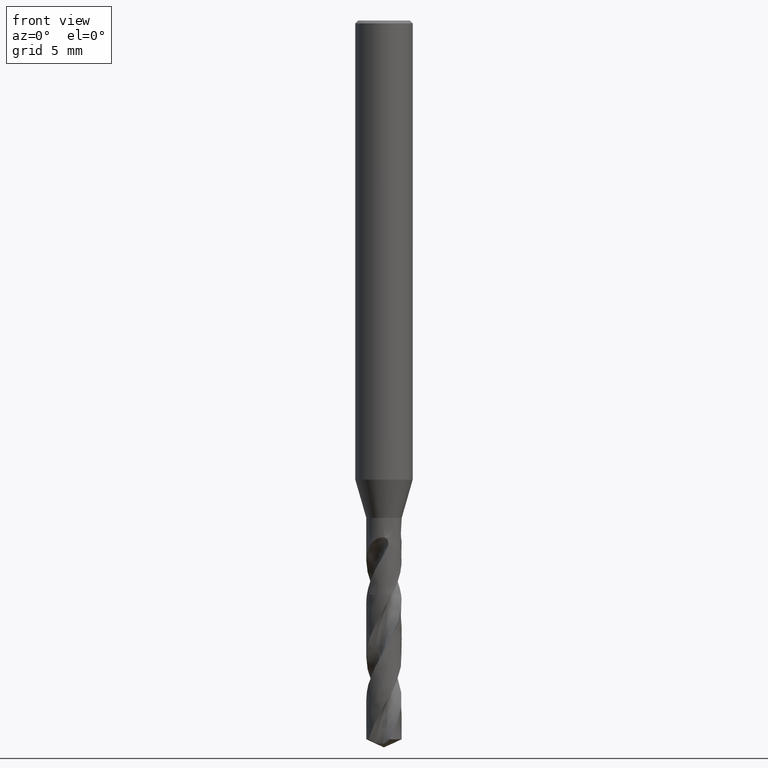
[diagram: clean part render]
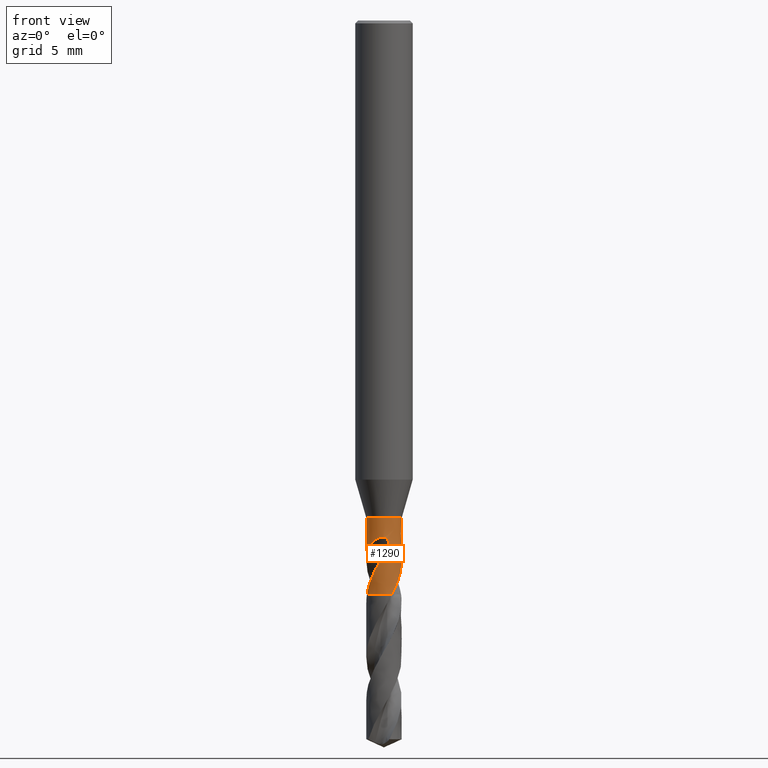
[diagram: same view with one face highlighted and labeled with its STEP entity id]
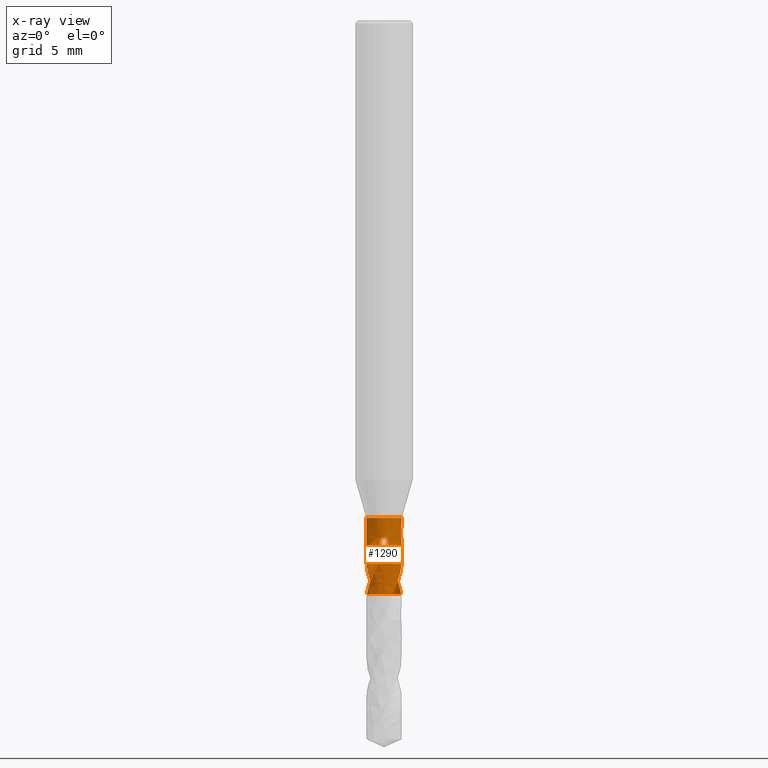
[diagram: x-ray of the same camera — body ghosted, the highlighted face saturated]
A machine part, front view. The second image highlights one B-rep face of the part: STEP entity #1290.
The next image is the same camera in x-ray: the body ghosted, the highlighted face saturated — about 0% of this face is hidden behind the body in this view.
In plain terms, the highlighted face is a freeform B-spline surface patch.
Its self-contained STEP definition (entity closure, byte-faithful):
#75 = VERTEX_POINT('', #76);
#76 = CARTESIAN_POINT('', (-0.925, 1.64868075335212E-15, -26.));
#90 = EDGE_CURVE('', #75, #75, #91, .T.);
#91 = CIRCLE('', #92, 0.925);
#92 = AXIS2_PLACEMENT_3D('', #93, #94, #95);
#93 = CARTESIAN_POINT('', (9.74843858730207E-32, 1.59204083889156E-15, -26.));
#94 = DIRECTION('', (3.74939945665464E-33, 6.12323399573677E-17, -1.));
#95 = DIRECTION('', (-1., 6.12323399573677E-17, 0.));
#207 = VERTEX_POINT('', #208);
#208 = CARTESIAN_POINT('', (0.414268588419358, -0.827046876935663, -30.));
#217 = VERTEX_POINT('', #218);
#218 = CARTESIAN_POINT('', (0.788812881587441, 0.48311410437051, -27.5484378001471));
#239 = EDGE_CURVE('', #217, #207, #240, .T.);
#240 = B_SPLINE_CURVE_WITH_KNOTS('', 3, (#241, #242, #243, #244, #245, #246, #247, #248, #249, #250, #251, #252, #253, #254, #255, #256, #257, #258, #259, #260, #261, #262, #263, #264, #265, #266, #267, #268, #269, #270, #271, #272, #273, #274, #275, #276, #277, #278, #279, #280, #281, #282, #283, #284, #285, #286, #287, #288, #289, #290, #291, #292, #293, #294, #295, #296, #297, #298, #299, #300, #301, #302, #303, #304, #305, #306, #307, #308, #309, #310, #311, #312, #313, #314, #315, #316, #317, #318, #319), .UNSPECIFIED., .F., .U., (4, 3, 3, 3, 3, 3, 3, 3, 3, 3, 3, 3, 3, 3, 3, 3, 3, 3, 3, 3, 3, 3, 3, 3, 3, 3, 4), (0., 0.130454988709354, 0.260964856189102, 0.348195578885795, 0.478838544386233, 0.566131726483107, 0.653452161893825, 0.740805188775253, 0.828189763664988, 0.867090090024549, 0.998756733275556, 1.13046240626533, 1.18891029750615, 1.22785801022427, 1.31552434826377, 1.40315336593242, 1.53465519290723, 1.62226750022974, 1.81940511611608, 1.9508098107285, 2.0383995078658, 2.16979591348524, 2.30116775884906, 2.43252164493, 2.62948503615783, 2.8263774012078, 2.89562118948527), .UNSPECIFIED.);
#241 = CARTESIAN_POINT('', (0.788812881587441, 0.48311410437051, -27.5484378001471));
#242 = CARTESIAN_POINT('', (0.803467967708319, 0.459185759889686, -27.5816583913351));
#243 = CARTESIAN_POINT('', (0.816888842729187, 0.43482489972588, -27.6151365811313));
#244 = CARTESIAN_POINT('', (0.829074376883995, 0.410195901484205, -27.6488392531419));
#245 = CARTESIAN_POINT('', (0.841265037152704, 0.38555654251081, -27.6825561029254));
#246 = CARTESIAN_POINT('', (0.852228524489638, 0.360630828255313, -27.7165299207103));
#247 = CARTESIAN_POINT('', (0.861983590559101, 0.335573076403409, -27.7507276388482));
#248 = CARTESIAN_POINT('', (0.868503721792283, 0.31882487302687, -27.7735848505315));
#249 = CARTESIAN_POINT('', (0.874487620732798, 0.30200940641826, -27.7965520409304));
#250 = CARTESIAN_POINT('', (0.879944338095419, 0.285171811113609, -27.8196212015904));
#251 = CARTESIAN_POINT('', (0.888116708059947, 0.259954624846056, -27.854171225562));
#252 = CARTESIAN_POINT('', (0.895110094369803, 0.234675109555443, -27.888973947021));
#253 = CARTESIAN_POINT('', (0.900969551703756, 0.209472830941715, -27.9240012247194));
#254 = CARTESIAN_POINT('', (0.904884731323894, 0.192633140508656, -27.9474057954803));
#255 = CARTESIAN_POINT('', (0.908295695513128, 0.17582054245484, -27.9709195980418));
#256 = CARTESIAN_POINT('', (0.911218913954033, 0.15907573935844, -27.9945362045096));
#257 = CARTESIAN_POINT('', (0.91414304503654, 0.142325708461162, -28.0181601841853));
#258 = CARTESIAN_POINT('', (0.916579828191253, 0.125639889065587, -28.0418950675783));
#259 = CARTESIAN_POINT('', (0.918548956539916, 0.109054181210236, -28.0657329223864));
#260 = CARTESIAN_POINT('', (0.92051881984585, 0.0924622829069197, -28.0895796744331));
#261 = CARTESIAN_POINT('', (0.922021350848171, 0.0759650655814016, -28.1135356224704));
#262 = CARTESIAN_POINT('', (0.923078173664019, 0.0595960175272386, -28.1375933951284));
#263 = CARTESIAN_POINT('', (0.924135378157025, 0.0432210577046755, -28.1616598563784));
#264 = CARTESIAN_POINT('', (0.924746778330119, 0.0269700424117557, -28.1858346741276));
#265 = CARTESIAN_POINT('', (0.924936034261434, 0.0108780754157864, -28.2101135605935));
#266 = CARTESIAN_POINT('', (0.92502028388447, 0.00371453689997417, -28.2209216077615));
#267 = CARTESIAN_POINT('', (0.925020928577659, -0.00341812275780943, -28.2317511521088));
#268 = CARTESIAN_POINT('', (0.924940209305844, -0.0105170912928615, -28.2426017463686));
#269 = CARTESIAN_POINT('', (0.924666997316119, -0.0345450994107187, -28.2793279504179));
#270 = CARTESIAN_POINT('', (0.923460663113267, -0.0581942316217355, -28.3163084604708));
#271 = CARTESIAN_POINT('', (0.921414353123823, -0.0813670071798532, -28.3535249752342));
#272 = CARTESIAN_POINT('', (0.919367436549884, -0.104546651807874, -28.3907525220314));
#273 = CARTESIAN_POINT('', (0.916479025078703, -0.127266568327639, -28.4282318979797));
#274 = CARTESIAN_POINT('', (0.912845998020689, -0.149456294272309, -28.4659385712614));
#275 = CARTESIAN_POINT('', (0.911233745749838, -0.159303574645559, -28.4826719092338));
#276 = CARTESIAN_POINT('', (0.90947480049693, -0.169046902596751, -28.4994533206896));
#277 = CARTESIAN_POINT('', (0.907579578770284, -0.178673747929527, -28.516284983453));
#278 = CARTESIAN_POINT('', (0.906316666631292, -0.185088754501069, -28.5275010385057));
#279 = CARTESIAN_POINT('', (0.904993350924171, -0.191451659033443, -28.5387403941516));
#280 = CARTESIAN_POINT('', (0.903612710884482, -0.197760129267751, -28.5500029064697));
#281 = CARTESIAN_POINT('', (0.900505066096554, -0.211959691847344, -28.575353386463));
#282 = CARTESIAN_POINT('', (0.897109155385688, -0.225879019885307, -28.6008280397954));
#283 = CARTESIAN_POINT('', (0.893435607349673, -0.239578412049275, -28.6263772779178));
#284 = CARTESIAN_POINT('', (0.88976362317703, -0.253271972255305, -28.6519156394933));
#285 = CARTESIAN_POINT('', (0.885814968610249, -0.266749440179987, -28.6775318796818));
#286 = CARTESIAN_POINT('', (0.881548372916112, -0.280173992741943, -28.7031205983003));
#287 = CARTESIAN_POINT('', (0.875145640765634, -0.300319753075489, -28.7415207006613));
#288 = CARTESIAN_POINT('', (0.868020474222891, -0.320342174157691, -28.779872152362));
#289 = CARTESIAN_POINT('', (0.860188181893511, -0.340148925811526, -28.8181835382092));
#290 = CARTESIAN_POINT('', (0.854969963877932, -0.353345055879659, -28.8437082703595));
#291 = CARTESIAN_POINT('', (0.849436930754068, -0.366449206879679, -28.8692183462497));
#292 = CARTESIAN_POINT('', (0.843590561634655, -0.379446918976721, -28.894708717917));
#293 = CARTESIAN_POINT('', (0.830435568860069, -0.408693243529679, -28.9520649416271));
#294 = CARTESIAN_POINT('', (0.815684058864199, -0.437418047233186, -29.0093464675463));
#295 = CARTESIAN_POINT('', (0.799379613785737, -0.465421564889092, -29.0665138166419));
#296 = CARTESIAN_POINT('', (0.788511669498556, -0.484087681292618, -29.1046194720032));
#297 = CARTESIAN_POINT('', (0.776951319492556, -0.502437905884926, -29.1426901353374));
#298 = CARTESIAN_POINT('', (0.764725950366369, -0.52040294084128, -29.180721371892));
#299 = CARTESIAN_POINT('', (0.756576953998219, -0.532377794369377, -29.2060716419216));
#300 = CARTESIAN_POINT('', (0.748131340138345, -0.544183537905284, -29.2314087728082));
#301 = CARTESIAN_POINT('', (0.739398605966511, -0.555800954924314, -29.2567309848974));
#302 = CARTESIAN_POINT('', (0.726298322269783, -0.573228653486734, -29.2947177317364));
#303 = CARTESIAN_POINT('', (0.712544495719824, -0.59023966161256, -29.3326781290825));
#304 = CARTESIAN_POINT('', (0.698211039737382, -0.606734162536479, -29.3706362444782));
#305 = CARTESIAN_POINT('', (0.683880262925205, -0.623225580353541, -29.4085872648471));
#306 = CARTESIAN_POINT('', (0.668976408045463, -0.639196025671836, -29.4465561136191));
#307 = CARTESIAN_POINT('', (0.653536601145273, -0.654610503248673, -29.4845248404428));
#308 = CARTESIAN_POINT('', (0.638098904955022, -0.670022873578236, -29.5224883767244));
#309 = CARTESIAN_POINT('', (0.622117594944659, -0.684887333065709, -29.5604611340609));
#310 = CARTESIAN_POINT('', (0.605627334106899, -0.699171318192163, -29.5984233886863));
#311 = CARTESIAN_POINT('', (0.58090040905167, -0.720589962395964, -29.6553472805694));
#312 = CARTESIAN_POINT('', (0.555020590587602, -0.740707209235568, -29.7122864412809));
#313 = CARTESIAN_POINT('', (0.528166069387101, -0.759385016410106, -29.7692116801436));
#314 = CARTESIAN_POINT('', (0.501321232087688, -0.778056088255577, -29.8261163914244));
#315 = CARTESIAN_POINT('', (0.47348082376478, -0.795304816381797, -29.8830444736634));
#316 = CARTESIAN_POINT('', (0.444815960194077, -0.811026363046614, -29.9399528117729));
#317 = CARTESIAN_POINT('', (0.434735001780131, -0.816555370981364, -29.9599665330478));
#318 = CARTESIAN_POINT('', (0.424548240514754, -0.821897789161122, -29.9799859964414));
#319 = CARTESIAN_POINT('', (0.414268588419358, -0.827046876935663, -30.));
#362 = VERTEX_POINT('', #363);
#363 = CARTESIAN_POINT('', (0.893072812918424, 0.240927272897806, -30.));
#406 = EDGE_CURVE('', #407, #362, #409, .T.);
#407 = VERTEX_POINT('', #408);
#408 = CARTESIAN_POINT('', (0.501716029106259, 0.777113908084162, -28.8104660981749));
#409 = B_SPLINE_CURVE_WITH_KNOTS('', 3, (#410, #411, #412, #413, #414, #415, #416, #417, #418, #419, #420, #421, #422, #423, #424, #425, #426, #427, #428, #429, #430, #431, #432, #433, #434, #435, #436, #437, #438, #439, #440), .UNSPECIFIED., .F., .U., (4, 3, 3, 3, 3, 3, 3, 3, 3, 3, 4), (0., 0.0875948285597074, 0.284629129228019, 0.415981123729168, 0.474362019896732, 0.605698742018459, 0.664077792194999, 0.860988972556183, 1.0578399953641, 1.25461645462135, 1.36957881376533), .UNSPECIFIED.);
#410 = CARTESIAN_POINT('', (0.501716029106257, 0.777113908084163, -28.8104660981749));
#411 = CARTESIAN_POINT('', (0.513416967121121, 0.769559612508488, -28.8361285220704));
#412 = CARTESIAN_POINT('', (0.525001883781626, 0.761705766279129, -28.861757782146));
#413 = CARTESIAN_POINT('', (0.536454973507818, 0.753552295065679, -28.887348541712));
#414 = CARTESIAN_POINT('', (0.562217356536554, 0.7352120171637, -28.9449119561002));
#415 = CARTESIAN_POINT('', (0.587317685651594, 0.715347224960369, -29.002311362781));
#416 = CARTESIAN_POINT('', (0.611499670421759, 0.694041175344866, -29.059538076047));
#417 = CARTESIAN_POINT('', (0.62762047740706, 0.679837597072228, -29.0976879966484));
#418 = CARTESIAN_POINT('', (0.643338632631326, 0.664989899258358, -29.1357760688683));
#419 = CARTESIAN_POINT('', (0.658580789886595, 0.649535482627978, -29.1738007469644));
#420 = CARTESIAN_POINT('', (0.665355340996147, 0.642666590411647, -29.1907012500147));
#421 = CARTESIAN_POINT('', (0.672036738938557, 0.63567715421376, -29.2075907987328));
#422 = CARTESIAN_POINT('', (0.678618876063749, 0.628570935575275, -29.2244691977652));
#423 = CARTESIAN_POINT('', (0.693426396525533, 0.612584413888792, -29.2624397283514));
#424 = CARTESIAN_POINT('', (0.707736483745491, 0.595998484878668, -29.3003598311633));
#425 = CARTESIAN_POINT('', (0.721449882157842, 0.578908513959238, -29.3382606006649));
#426 = CARTESIAN_POINT('', (0.727545474929402, 0.57131203786555, -29.3551074572692));
#427 = CARTESIAN_POINT('', (0.733523221176761, 0.563616428294806, -29.3719529545993));
#428 = CARTESIAN_POINT('', (0.739373740225311, 0.555834033021761, -29.3888018426457));
#429 = CARTESIAN_POINT('', (0.759107405094675, 0.529584194516023, -29.4456327507019));
#430 = CARTESIAN_POINT('', (0.77740982021835, 0.502328724524876, -29.5025228116494));
#431 = CARTESIAN_POINT('', (0.794218615100239, 0.474174853222167, -29.5593827061845));
#432 = CARTESIAN_POINT('', (0.811022274793909, 0.446029583096951, -29.6162252296788));
#433 = CARTESIAN_POINT('', (0.826342018783446, 0.416963948209241, -29.6730773916235));
#434 = CARTESIAN_POINT('', (0.840066498923183, 0.387186360021785, -29.7299151042214));
#435 = CARTESIAN_POINT('', (0.853785780482005, 0.357420051037626, -29.786731287738));
#436 = CARTESIAN_POINT('', (0.865921861583498, 0.326921857337729, -29.8435729449737));
#437 = CARTESIAN_POINT('', (0.876402462758471, 0.295877885741416, -29.9003951182247));
#438 = CARTESIAN_POINT('', (0.882525525653646, 0.277741121692597, -29.9335922349595));
#439 = CARTESIAN_POINT('', (0.888087294675169, 0.259407666370107, -29.9668020733503));
#440 = CARTESIAN_POINT('', (0.893072812918424, 0.240927272897806, -30.));
#443 = VERTEX_POINT('', #444);
#444 = CARTESIAN_POINT('', (0.280240679913792, 0.881527175600083, -28.3808571978916));
#453 = EDGE_CURVE('', #454, #443, #456, .T.);
#454 = VERTEX_POINT('', #455);
#455 = CARTESIAN_POINT('', (0.0621198859272874, 0.922911761639423, -27.));
#456 = B_SPLINE_CURVE_WITH_KNOTS('', 3, (#457, #458, #459, #460, #461, #462, #463, #464, #465, #466, #467, #468, #469, #470, #471, #472, #473, #474, #475, #476, #477, #478, #479, #480, #481, #482, #483, #484, #485, #486, #487, #488, #489, #490, #491, #492, #493, #494, #495, #496, #497, #498, #499, #500, #501, #502, #503, #504, #505, #506, #507, #508, #509, #510, #511, #512, #513, #514, #515, #516, #517, #518, #519, #520, #521, #522, #523, #524, #525, #526, #527, #528, #529, #530, #531, #532, #533, #534, #535, #536, #537, #538, #539, #540, #541, #542, #543, #544), .UNSPECIFIED., .F., .U., (4, 3, 3, 3, 3, 3, 3, 3, 3, 3, 3, 3, 3, 3, 3, 3, 3, 3, 3, 3, 3, 3, 3, 3, 3, 3, 3, 3, 3, 4), (0., 0.058153336523216, 0.0696711846698099, 0.108635785131198, 0.147479481941204, 0.186201170523435, 0.224824813109059, 0.2633989112116, 0.301979943489574, 0.340611513787795, 0.379315157360482, 0.405193054717449, 0.422471033938391, 0.480765540470363, 0.539195073339926, 0.597719055958971, 0.656303750912498, 0.74442716044685, 0.83258081531349, 0.920707555454785, 1.00877534270047, 1.14104751867222, 1.16702152981636, 1.19300738533027, 1.28105759609142, 1.36904745633339, 1.45697761912993, 1.54484366206323, 1.63264593855993, 1.68496324266551), .UNSPECIFIED.);
#457 = CARTESIAN_POINT('', (0.0621198859151109, 0.922911761640247, -27.));
#458 = CARTESIAN_POINT('', (0.042779210118372, 0.924213555185363, -27.0000179146259));
#459 = CARTESIAN_POINT('', (0.0233182921437548, 0.924904299027628, -27.0013705539748));
#460 = CARTESIAN_POINT('', (0.0041689407314838, 0.924990605321579, -27.0043791449));
#461 = CARTESIAN_POINT('', (0.000376220745688147, 0.925007699143657, -27.0049750263315));
#462 = CARTESIAN_POINT('', (-0.00340704992668283, 0.925001406039172, -27.0056361455561));
#463 = CARTESIAN_POINT('', (-0.00717644090856691, 0.924972161038314, -27.0063647937053));
#464 = CARTESIAN_POINT('', (-0.0199281990254081, 0.924873225910901, -27.0088297926922));
#465 = CARTESIAN_POINT('', (-0.0325603965442961, 0.924508888382611, -27.0120792588315));
#466 = CARTESIAN_POINT('', (-0.044869206088107, 0.923911118206198, -27.0161816022674));
#467 = CARTESIAN_POINT('', (-0.0571398225027596, 0.923315202856888, -27.0202712165004));
#468 = CARTESIAN_POINT('', (-0.0691506390149038, 0.922483994688215, -27.0252324730808));
#469 = CARTESIAN_POINT('', (-0.0806621952060083, 0.921476321054725, -27.0310734280354));
#470 = CARTESIAN_POINT('', (-0.0921375935469302, 0.920471812528687, -27.036896036524));
#471 = CARTESIAN_POINT('', (-0.103183471286882, 0.919286437816272, -27.0436300732509));
#472 = CARTESIAN_POINT('', (-0.11356300874635, 0.918002419955677, -27.0511940057159));
#473 = CARTESIAN_POINT('', (-0.123916264498284, 0.916721653317211, -27.0587387857801));
#474 = CARTESIAN_POINT('', (-0.133671656854278, 0.915335678194119, -27.0671578155475));
#475 = CARTESIAN_POINT('', (-0.142646804193185, 0.91393483862553, -27.0762813210587));
#476 = CARTESIAN_POINT('', (-0.151610438660552, 0.9125357959841, -27.0853931233919));
#477 = CARTESIAN_POINT('', (-0.159852697692456, 0.911114219582775, -27.0952626119096));
#478 = CARTESIAN_POINT('', (-0.167278448641568, 0.909748822818734, -27.1056704416284));
#479 = CARTESIAN_POINT('', (-0.174705534462067, 0.908383180607589, -27.1160801422844));
#480 = CARTESIAN_POINT('', (-0.181359597083757, 0.907066484405544, -27.127083895508));
#481 = CARTESIAN_POINT('', (-0.187228102380981, 0.905853540964995, -27.1384627295417));
#482 = CARTESIAN_POINT('', (-0.193104294943736, 0.904639008667006, -27.1498564689243));
#483 = CARTESIAN_POINT('', (-0.198222399857746, 0.903522679258239, -27.1616768906034));
#484 = CARTESIAN_POINT('', (-0.202624124078905, 0.902534467120929, -27.1737379969171));
#485 = CARTESIAN_POINT('', (-0.207034060409369, 0.901544411318347, -27.1858216051228));
#486 = CARTESIAN_POINT('', (-0.21074255675634, 0.90067894149415, -27.1981893166306));
#487 = CARTESIAN_POINT('', (-0.213816249186579, 0.899948671638436, -27.2106977320771));
#488 = CARTESIAN_POINT('', (-0.215871370872144, 0.899460401113375, -27.2190610658912));
#489 = CARTESIAN_POINT('', (-0.217646512186441, 0.899031385832472, -27.2275009462475));
#490 = CARTESIAN_POINT('', (-0.219163144373649, 0.898661513668202, -27.2359844777719));
#491 = CARTESIAN_POINT('', (-0.220175759079355, 0.898414559926925, -27.2416487046362));
#492 = CARTESIAN_POINT('', (-0.221073742846014, 0.898193777432043, -27.2473356757447));
#493 = CARTESIAN_POINT('', (-0.221863383698658, 0.897998685396471, -27.2530372761414));
#494 = CARTESIAN_POINT('', (-0.224527568164547, 0.897340460623972, -27.2722740154219));
#495 = CARTESIAN_POINT('', (-0.225966370228195, 0.896975138678544, -27.2917175982988));
#496 = CARTESIAN_POINT('', (-0.226399853142188, 0.896865712633279, -27.3111439565621));
#497 = CARTESIAN_POINT('', (-0.226834340123525, 0.896756033126769, -27.3306153116897));
#498 = CARTESIAN_POINT('', (-0.226260787525785, 0.896901971654703, -27.3501290976623));
#499 = CARTESIAN_POINT('', (-0.224858224538691, 0.897253464109953, -27.3695518613473));
#500 = CARTESIAN_POINT('', (-0.223453394346705, 0.89760552474319, -27.389006021401));
#501 = CARTESIAN_POINT('', (-0.221213917459767, 0.898163976564712, -27.4084094400203));
#502 = CARTESIAN_POINT('', (-0.218278292899498, 0.898876847431773, -27.4276821087905));
#503 = CARTESIAN_POINT('', (-0.215339622944636, 0.89959045782565, -27.4469747708806));
#504 = CARTESIAN_POINT('', (-0.211698647573708, 0.900459644066104, -27.4661645971779));
#505 = CARTESIAN_POINT('', (-0.207463338545099, 0.901434392043994, -27.4852030807108));
#506 = CARTESIAN_POINT('', (-0.201092564193048, 0.902900613133248, -27.5138408688331));
#507 = CARTESIAN_POINT('', (-0.19336798260759, 0.904607349537737, -27.542187314788));
#508 = CARTESIAN_POINT('', (-0.184568936804847, 0.906399088463096, -27.5701556172614));
#509 = CARTESIAN_POINT('', (-0.17576687103198, 0.908191442341275, -27.5981335188937));
#510 = CARTESIAN_POINT('', (-0.165873348252054, 0.910071676058908, -27.6257783209349));
#511 = CARTESIAN_POINT('', (-0.155099972437247, 0.911904051175324, -27.6530552094859));
#512 = CARTESIAN_POINT('', (-0.144329885906946, 0.913735866838215, -27.6803237699652));
#513 = CARTESIAN_POINT('', (-0.132668693896224, 0.91552166089868, -27.7072552900655));
#514 = CARTESIAN_POINT('', (-0.1202889685434, 0.917145334201057, -27.7338453406164));
#515 = CARTESIAN_POINT('', (-0.107917524679886, 0.91876792133773, -27.7604176035983));
#516 = CARTESIAN_POINT('', (-0.0948175163371329, 0.920229976212526, -27.786669585691));
#517 = CARTESIAN_POINT('', (-0.0811383494373342, 0.921434516528759, -27.8126156845849));
#518 = CARTESIAN_POINT('', (-0.0605931168624611, 0.923243658936633, -27.8515850633557));
#519 = CARTESIAN_POINT('', (-0.03872279157457, 0.924468789836733, -27.8899039708553));
#520 = CARTESIAN_POINT('', (-0.0159885991345008, 0.92486180843287, -27.9276795461662));
#521 = CARTESIAN_POINT('', (-0.0115243332112013, 0.924938984674366, -27.9350974570525));
#522 = CARTESIAN_POINT('', (-0.00702611079022006, 0.924984402186251, -27.9424954237817));
#523 = CARTESIAN_POINT('', (-0.0024972730589651, 0.924996628981572, -27.9498744825044));
#524 = CARTESIAN_POINT('', (0.00203362986077418, 0.925008861352415, -27.9572569061406));
#525 = CARTESIAN_POINT('', (0.00659532186157215, 0.924987872903973, -27.9646206405269));
#526 = CARTESIAN_POINT('', (0.0111844623498668, 0.924932380124054, -27.9719668041361));
#527 = CARTESIAN_POINT('', (0.0267342596998384, 0.924744348948213, -27.996858470825));
#528 = CARTESIAN_POINT('', (0.0426019947832137, 0.924158505538454, -28.0215533334959));
#529 = CARTESIAN_POINT('', (0.0586591508054785, 0.923138182520241, -28.0461002947195));
#530 = CARTESIAN_POINT('', (0.0747053010880168, 0.922118558841909, -28.0706304312037));
#531 = CARTESIAN_POINT('', (0.0909466333774967, 0.920664681196198, -28.0950191195817));
#532 = CARTESIAN_POINT('', (0.107259767747266, 0.918760220200542, -28.1193193426798));
#533 = CARTESIAN_POINT('', (0.123561834336655, 0.916857051302136, -28.1436030790913));
#534 = CARTESIAN_POINT('', (0.139939850769296, 0.914503263028516, -28.1678045081153));
#535 = CARTESIAN_POINT('', (0.156266186944626, 0.911704929688618, -28.1919850655666));
#536 = CARTESIAN_POINT('', (0.172580617734938, 0.908908636931215, -28.2161479902286));
#537 = CARTESIAN_POINT('', (0.188846024123207, 0.905668058408079, -28.2402966970039));
#538 = CARTESIAN_POINT('', (0.204941942652263, 0.902010975621649, -28.2644912002146));
#539 = CARTESIAN_POINT('', (0.221026179997847, 0.898356546865489, -28.2886681449102));
#540 = CARTESIAN_POINT('', (0.236944907077678, 0.894285490853882, -28.3128967274021));
#541 = CARTESIAN_POINT('', (0.252588139497232, 0.889845060550054, -28.3372309430976));
#542 = CARTESIAN_POINT('', (0.261909216129212, 0.88719921408873, -28.3517305735573));
#543 = CARTESIAN_POINT('', (0.271133860341822, 0.884422266505209, -28.3662693076234));
#544 = CARTESIAN_POINT('', (0.280240679913791, 0.881527175600083, -28.3808571978916));
#546 = EDGE_CURVE('', #454, #547, #549, .T.);
#547 = VERTEX_POINT('', #548);
#548 = CARTESIAN_POINT('', (0.0629019697120068, 0.922858787792777, -27.));
#549 = LINE('', #550, #551);
#550 = CARTESIAN_POINT('', (0.0621198859272874, 0.922911761639424, -27.));
#551 = VECTOR('', #552, 0.000783875803140785);
#552 = DIRECTION('', (0.000782083784719403, -5.2973846647042E-5, 0.));
#554 = EDGE_CURVE('', #547, #217, #555, .T.);
#555 = B_SPLINE_CURVE_WITH_KNOTS('', 3, (#556, #557, #558, #559, #560, #561, #562, #563, #564, #565, #566, #567, #568, #569, #570, #571, #572, #573, #574, #575, #576, #577, #578, #579, #580, #581, #582, #583, #584, #585, #586, #587, #588, #589, #590, #591, #592, #593, #594, #595), .UNSPECIFIED., .F., .U., (4, 3, 3, 3, 3, 3, 3, 3, 3, 3, 3, 3, 3, 4), (0., 0.0588816814291124, 0.117460251375246, 0.175830419787424, 0.234058083197423, 0.292187442918907, 0.379052592035708, 0.465764180277701, 0.552386153035916, 0.638958760806303, 0.725509143381339, 0.854589445157703, 0.983743257743195, 1.06483150077003), .UNSPECIFIED.);
#556 = CARTESIAN_POINT('', (0.0629019697121703, 0.922858787792766, -27.));
#557 = CARTESIAN_POINT('', (0.0824837549338613, 0.921524095121234, -27.0000181198375));
#558 = CARTESIAN_POINT('', (0.102059400315676, 0.919558681069032, -27.0013943339329));
#559 = CARTESIAN_POINT('', (0.121366382599465, 0.917003381223169, -27.0038313245188));
#560 = CARTESIAN_POINT('', (0.140573976280724, 0.914461235565619, -27.0062557699494));
#561 = CARTESIAN_POINT('', (0.159597186552468, 0.911326730913852, -27.0097389552671));
#562 = CARTESIAN_POINT('', (0.178284071956197, 0.907656206769237, -27.0140516877683));
#563 = CARTESIAN_POINT('', (0.196904476126489, 0.90399874103255, -27.0183490771146));
#564 = CARTESIAN_POINT('', (0.215246819792287, 0.899799278939166, -27.0234829564048));
#565 = CARTESIAN_POINT('', (0.233219259434406, 0.895116627612776, -27.0292819435698));
#566 = CARTESIAN_POINT('', (0.2511478211399, 0.890445408517192, -27.0350667730803));
#567 = CARTESIAN_POINT('', (0.26874828366591, 0.885283564288229, -27.041526620002));
#568 = CARTESIAN_POINT('', (0.285962138133908, 0.879687817099843, -27.0485329523442));
#569 = CARTESIAN_POINT('', (0.303146931065023, 0.874101517011964, -27.0555274561454));
#570 = CARTESIAN_POINT('', (0.319976292962721, 0.868073410576617, -27.0630790178789));
#571 = CARTESIAN_POINT('', (0.336411084391646, 0.861656882000277, -27.071089806348));
#572 = CARTESIAN_POINT('', (0.360970285026525, 0.852068393252654, -27.083060664762));
#573 = CARTESIAN_POINT('', (0.384708384230473, 0.841588603608464, -27.0960847735797));
#574 = CARTESIAN_POINT('', (0.407541295038717, 0.830382497911756, -27.1099222691114));
#575 = CARTESIAN_POINT('', (0.430333841652646, 0.819196202454385, -27.1237353026128));
#576 = CARTESIAN_POINT('', (0.452280691788224, 0.807259231742276, -27.1383939045561));
#577 = CARTESIAN_POINT('', (0.473330809276733, 0.794721929349779, -27.1537282413254));
#578 = CARTESIAN_POINT('', (0.494359171697661, 0.782197584123008, -27.1690467302244));
#579 = CARTESIAN_POINT('', (0.514534316693756, 0.769049693006571, -27.1850704500083));
#580 = CARTESIAN_POINT('', (0.533825537506512, 0.755417298918873, -27.2016750873908));
#581 = CARTESIAN_POINT('', (0.553105764447271, 0.741792673794947, -27.2182702619581));
#582 = CARTESIAN_POINT('', (0.571534850595947, 0.727661839620689, -27.2354733473566));
#583 = CARTESIAN_POINT('', (0.58909622316853, 0.713155410726565, -27.2531911094523));
#584 = CARTESIAN_POINT('', (0.606653087329663, 0.698652705969029, -27.2709043229877));
#585 = CARTESIAN_POINT('', (0.623367399839969, 0.68375429081398, -27.2891570509945));
#586 = CARTESIAN_POINT('', (0.639233442089222, 0.668584778853638, -27.3078782814146));
#587 = CARTESIAN_POINT('', (0.662895885403722, 0.645961133256884, -27.3357989213972));
#588 = CARTESIAN_POINT('', (0.684719398402819, 0.622686755078873, -27.3648249266879));
#589 = CARTESIAN_POINT('', (0.704730448010052, 0.599149393430013, -27.3947724341129));
#590 = CARTESIAN_POINT('', (0.724752893844502, 0.575598627330779, -27.4247369965452));
#591 = CARTESIAN_POINT('', (0.743008024020252, 0.551729983391631, -27.4556918442441));
#592 = CARTESIAN_POINT('', (0.759567358719055, 0.527903805222656, -27.4874961456987));
#593 = CARTESIAN_POINT('', (0.769964011590068, 0.512944719717631, -27.5074642354826));
#594 = CARTESIAN_POINT('', (0.779703569657664, 0.497987490445563, -27.5277885371453));
#595 = CARTESIAN_POINT('', (0.788812881587441, 0.48311410437051, -27.5484378001471));
#702 = EDGE_CURVE('', #443, #407, #703, .T.);
#703 = B_SPLINE_CURVE_WITH_KNOTS('', 3, (#704, #705, #706, #707, #708, #709, #710, #711, #712, #713, #714, #715, #716, #717, #718, #719, #720, #721, #722, #723, #724, #725), .UNSPECIFIED., .F., .U., (4, 3, 3, 3, 3, 3, 3, 4), (0., 0.131668186767279, 0.170612236607393, 0.209553238238397, 0.297184842229704, 0.355578128913618, 0.394511305812068, 0.495028420305087), .UNSPECIFIED.);
#704 = CARTESIAN_POINT('', (0.280240679913792, 0.881527175600083, -28.3808571978916));
#705 = CARTESIAN_POINT('', (0.303160026404548, 0.874241032391421, -28.4175708836062));
#706 = CARTESIAN_POINT('', (0.325192894572636, 0.866249163056657, -28.4547179381464));
#707 = CARTESIAN_POINT('', (0.346196893353239, 0.8577719458181, -28.4923111272674));
#708 = CARTESIAN_POINT('', (0.352409333848066, 0.855264603849251, -28.5034302219153));
#709 = CARTESIAN_POINT('', (0.358532044855687, 0.852714947830181, -28.5145904532398));
#710 = CARTESIAN_POINT('', (0.364559384185865, 0.850130257902888, -28.5257933995048));
#711 = CARTESIAN_POINT('', (0.370586251747167, 0.847545770283146, -28.5369954688985));
#712 = CARTESIAN_POINT('', (0.376516726689707, 0.844926793209115, -28.5482419205831));
#713 = CARTESIAN_POINT('', (0.382356541952799, 0.84227577124473, -28.5595272078101));
#714 = CARTESIAN_POINT('', (0.395498278351029, 0.83630999488498, -28.5849232628622));
#715 = CARTESIAN_POINT('', (0.408176685348194, 0.830186499778607, -28.6105245818111));
#716 = CARTESIAN_POINT('', (0.420544897059846, 0.823873163513456, -28.6362233066744));
#717 = CARTESIAN_POINT('', (0.428786450327746, 0.819666274244381, -28.6533476424164));
#718 = CARTESIAN_POINT('', (0.43689381945188, 0.81537289621059, -28.6705157697055));
#719 = CARTESIAN_POINT('', (0.444937126209099, 0.810959896493526, -28.6876824421292));
#720 = CARTESIAN_POINT('', (0.450299925643946, 0.808017570270869, -28.6991281601591));
#721 = CARTESIAN_POINT('', (0.455638732880972, 0.805019252988927, -28.7105708979166));
#722 = CARTESIAN_POINT('', (0.460958702140545, 0.801961392412944, -28.7220063156342));
#723 = CARTESIAN_POINT('', (0.47469372203267, 0.794066652088476, -28.751530112138));
#724 = CARTESIAN_POINT('', (0.488288929065598, 0.785782638941677, -28.7810178665465));
#725 = CARTESIAN_POINT('', (0.501716029106259, 0.777113908084162, -28.8104660981749));
#747 = VERTEX_POINT('', #748);
#748 = CARTESIAN_POINT('', (-0.893072812918424, -0.240927272897802, -30.));
#791 = EDGE_CURVE('', #792, #747, #794, .T.);
#792 = VERTEX_POINT('', #793);
#793 = CARTESIAN_POINT('', (-0.501716029106257, -0.777113908084159, -28.8104660981749));
#794 = B_SPLINE_CURVE_WITH_KNOTS('', 3, (#795, #796, #797, #798, #799, #800, #801, #802, #803, #804, #805, #806, #807, #808, #809, #810, #811, #812, #813, #814, #815, #816, #817, #818, #819, #820, #821, #822, #823, #824, #825), .UNSPECIFIED., .F., .U., (4, 3, 3, 3, 3, 3, 3, 3, 3, 3, 4), (0., 0.0875948285597087, 0.284629129228016, 0.415981123729165, 0.474362019896727, 0.605698742018454, 0.664077792194993, 0.860988972556177, 1.05783999536409, 1.25461645462134, 1.36957881376533), .UNSPECIFIED.);
#795 = CARTESIAN_POINT('', (-0.501716029106259, -0.777113908084158, -28.8104660981749));
#796 = CARTESIAN_POINT('', (-0.513416967121123, -0.769559612508483, -28.8361285220704));
#797 = CARTESIAN_POINT('', (-0.525001883781628, -0.761705766279125, -28.8617577821461));
#798 = CARTESIAN_POINT('', (-0.53645497350782, -0.753552295065675, -28.887348541712));
#799 = CARTESIAN_POINT('', (-0.562217356536555, -0.735212017163696, -28.9449119561002));
#800 = CARTESIAN_POINT('', (-0.587317685651596, -0.715347224960364, -29.002311362781));
#801 = CARTESIAN_POINT('', (-0.61149967042176, -0.694041175344861, -29.059538076047));
#802 = CARTESIAN_POINT('', (-0.627620477407061, -0.679837597072224, -29.0976879966484));
#803 = CARTESIAN_POINT('', (-0.643338632631327, -0.664989899258355, -29.1357760688683));
#804 = CARTESIAN_POINT('', (-0.658580789886595, -0.649535482627974, -29.1738007469644));
#805 = CARTESIAN_POINT('', (-0.665355340996146, -0.642666590411644, -29.1907012500147));
#806 = CARTESIAN_POINT('', (-0.672036738938557, -0.635677154213757, -29.2075907987328));
#807 = CARTESIAN_POINT('', (-0.678618876063749, -0.628570935575271, -29.2244691977652));
#808 = CARTESIAN_POINT('', (-0.693426396525534, -0.612584413888789, -29.2624397283514));
#809 = CARTESIAN_POINT('', (-0.707736483745491, -0.595998484878665, -29.3003598311633));
#810 = CARTESIAN_POINT('', (-0.721449882157842, -0.578908513959234, -29.3382606006649));
#811 = CARTESIAN_POINT('', (-0.727545474929402, -0.571312037865547, -29.3551074572692));
#812 = CARTESIAN_POINT('', (-0.733523221176761, -0.563616428294803, -29.3719529545993));
#813 = CARTESIAN_POINT('', (-0.739373740225311, -0.555834033021758, -29.3888018426457));
#814 = CARTESIAN_POINT('', (-0.759107405094674, -0.52958419451602, -29.4456327507019));
#815 = CARTESIAN_POINT('', (-0.777409820218349, -0.502328724524873, -29.5025228116494));
#816 = CARTESIAN_POINT('', (-0.794218615100238, -0.474174853222165, -29.5593827061845));
#817 = CARTESIAN_POINT('', (-0.811022274793908, -0.446029583096949, -29.6162252296788));
#818 = CARTESIAN_POINT('', (-0.826342018783445, -0.416963948209239, -29.6730773916235));
#819 = CARTESIAN_POINT('', (-0.840066498923182, -0.387186360021784, -29.7299151042214));
#820 = CARTESIAN_POINT('', (-0.853785780482004, -0.357420051037624, -29.786731287738));
#821 = CARTESIAN_POINT('', (-0.865921861583497, -0.326921857337729, -29.8435729449737));
#822 = CARTESIAN_POINT('', (-0.87640246275847, -0.295877885741415, -29.9003951182247));
#823 = CARTESIAN_POINT('', (-0.882525525653646, -0.277741121692595, -29.9335922349595));
#824 = CARTESIAN_POINT('', (-0.888087294675169, -0.259407666370105, -29.9668020733503));
#825 = CARTESIAN_POINT('', (-0.893072812918424, -0.240927272897802, -30.));
#828 = VERTEX_POINT('', #829);
#829 = CARTESIAN_POINT('', (-0.280240679913791, -0.881527175600079, -28.3808571978916));
#838 = EDGE_CURVE('', #839, #828, #841, .T.);
#839 = VERTEX_POINT('', #840);
#840 = CARTESIAN_POINT('', (-0.0621198859272858, -0.92291176163942, -27.));
#841 = B_SPLINE_CURVE_WITH_KNOTS('', 3, (#842, #843, #844, #845, #846, #847, #848, #849, #850, #851, #852, #853, #854, #855, #856, #857, #858, #859, #860, #861, #862, #863, #864, #865, #866, #867, #868, #869, #870, #871, #872, #873, #874, #875, #876, #877, #878, #879, #880, #881, #882, #883, #884, #885, #886, #887, #888, #889, #890, #891, #892, #893, #894, #895, #896, #897, #898, #899, #900, #901, #902, #903, #904, #905, #906, #907, #908, #909, #910, #911, #912, #913, #914, #915, #916, #917, #918, #919, #920, #921, #922, #923, #924, #925, #926, #927, #928, #929), .UNSPECIFIED., .F., .U., (4, 3, 3, 3, 3, 3, 3, 3, 3, 3, 3, 3, 3, 3, 3, 3, 3, 3, 3, 3, 3, 3, 3, 3, 3, 3, 3, 3, 3, 4), (0., 0.0581533365232143, 0.0696711846698087, 0.108635785131197, 0.147479481941202, 0.186201170523433, 0.224824813109055, 0.263398911211596, 0.30197994348957, 0.34061151378779, 0.379315157360478, 0.405193054717445, 0.422471033938388, 0.480765540470362, 0.539195073339926, 0.59771905595897, 0.656303750912497, 0.744427160446848, 0.832580815313489, 0.920707555454786, 1.00877534270047, 1.14104751867222, 1.16702152981636, 1.19300738533027, 1.28105759609142, 1.36904745633339, 1.45697761912993, 1.54484366206323, 1.63264593855993, 1.68496324266528), .UNSPECIFIED.);
#842 = CARTESIAN_POINT('', (-0.0621198859148864, -0.922911761640259, -27.));
#843 = CARTESIAN_POINT('', (-0.0427792101181477, -0.92421355518537, -27.0000179146259));
#844 = CARTESIAN_POINT('', (-0.0233182921435316, -0.92490429902763, -27.0013705539748));
#845 = CARTESIAN_POINT('', (-0.0041689407312631, -0.924990605321576, -27.0043791449));
#846 = CARTESIAN_POINT('', (-0.000376220745467678, -0.925007699143654, -27.0049750263315));
#847 = CARTESIAN_POINT('', (0.00340704992690306, -0.925001406039167, -27.0056361455561));
#848 = CARTESIAN_POINT('', (0.00717644090878679, -0.924972161038309, -27.0063647937054));
#849 = CARTESIAN_POINT('', (0.0199281990256261, -0.924873225910893, -27.0088297926922));
#850 = CARTESIAN_POINT('', (0.0325603965445114, -0.9245088883826, -27.0120792588316));
#851 = CARTESIAN_POINT('', (0.0448692060883188, -0.923911118206184, -27.0161816022674));
#852 = CARTESIAN_POINT('', (0.0571398225029679, -0.923315202856871, -27.0202712165005));
#853 = CARTESIAN_POINT('', (0.0691506390151071, -0.922483994688196, -27.0252324730809));
#854 = CARTESIAN_POINT('', (0.0806621952062062, -0.921476321054705, -27.0310734280355));
#855 = CARTESIAN_POINT('', (0.0921375935471227, -0.920471812528664, -27.0368960365241));
#856 = CARTESIAN_POINT('', (0.103183471287068, -0.919286437816248, -27.043630073251));
#857 = CARTESIAN_POINT('', (0.113563008746529, -0.918002419955652, -27.051194005716));
#858 = CARTESIAN_POINT('', (0.123916264498455, -0.916721653317185, -27.0587387857802));
#859 = CARTESIAN_POINT('', (0.133671656854442, -0.915335678194092, -27.0671578155477));
#860 = CARTESIAN_POINT('', (0.14264680419334, -0.913934838625503, -27.0762813210589));
#861 = CARTESIAN_POINT('', (0.151610438660699, -0.912535795984072, -27.0853931233921));
#862 = CARTESIAN_POINT('', (0.159852697692593, -0.911114219582747, -27.0952626119098));
#863 = CARTESIAN_POINT('', (0.167278448641696, -0.909748822818708, -27.1056704416286));
#864 = CARTESIAN_POINT('', (0.174705534462185, -0.908383180607563, -27.1160801422846));
#865 = CARTESIAN_POINT('', (0.181359597083868, -0.907066484405519, -27.1270838955081));
#866 = CARTESIAN_POINT('', (0.187228102381083, -0.905853540964971, -27.1384627295419));
#867 = CARTESIAN_POINT('', (0.193104294943829, -0.904639008666983, -27.1498564689245));
#868 = CARTESIAN_POINT('', (0.19822239985783, -0.903522679258217, -27.1616768906036));
#869 = CARTESIAN_POINT('', (0.20262412407898, -0.902534467120909, -27.1737379969173));
#870 = CARTESIAN_POINT('', (0.207034060409436, -0.901544411318328, -27.185821605123));
#871 = CARTESIAN_POINT('', (0.2107425567564, -0.900678941494132, -27.1981893166308));
#872 = CARTESIAN_POINT('', (0.213816249186631, -0.89994867163842, -27.2106977320773));
#873 = CARTESIAN_POINT('', (0.215871370872191, -0.899460401113359, -27.2190610658915));
#874 = CARTESIAN_POINT('', (0.217646512186484, -0.899031385832458, -27.2275009462477));
#875 = CARTESIAN_POINT('', (0.219163144373688, -0.898661513668189, -27.2359844777721));
#876 = CARTESIAN_POINT('', (0.220175759079391, -0.898414559926913, -27.2416487046364));
#877 = CARTESIAN_POINT('', (0.221073742846047, -0.898193777432031, -27.2473356757449));
#878 = CARTESIAN_POINT('', (0.221863383698688, -0.89799868539646, -27.2530372761416));
#879 = CARTESIAN_POINT('', (0.224527568164568, -0.897340460623964, -27.2722740154221));
#880 = CARTESIAN_POINT('', (0.225966370228208, -0.896975138678538, -27.2917175982991));
#881 = CARTESIAN_POINT('', (0.226399853142194, -0.896865712633274, -27.3111439565623));
#882 = CARTESIAN_POINT('', (0.226834340123522, -0.896756033126767, -27.33061531169));
#883 = CARTESIAN_POINT('', (0.226260787525775, -0.896901971654702, -27.3501290976625));
#884 = CARTESIAN_POINT('', (0.224858224538675, -0.897253464109954, -27.3695518613475));
#885 = CARTESIAN_POINT('', (0.223453394346683, -0.897605524743192, -27.3890060214012));
#886 = CARTESIAN_POINT('', (0.22121391745974, -0.898163976564716, -27.4084094400206));
#887 = CARTESIAN_POINT('', (0.218278292899465, -0.898876847431778, -27.4276821087907));
#888 = CARTESIAN_POINT('', (0.215339622944598, -0.899590457825656, -27.4469747708808));
#889 = CARTESIAN_POINT('', (0.211698647573664, -0.900459644066111, -27.4661645971781));
#890 = CARTESIAN_POINT('', (0.20746333854505, -0.901434392044002, -27.4852030807111));
#891 = CARTESIAN_POINT('', (0.201092564192993, -0.902900613133257, -27.5138408688333));
#892 = CARTESIAN_POINT('', (0.193367982607528, -0.904607349537747, -27.5421873147882));
#893 = CARTESIAN_POINT('', (0.18456893680478, -0.906399088463106, -27.5701556172617));
#894 = CARTESIAN_POINT('', (0.175766871031907, -0.908191442341285, -27.5981335188939));
#895 = CARTESIAN_POINT('', (0.165873348251977, -0.910071676058919, -27.6257783209351));
#896 = CARTESIAN_POINT('', (0.155099972437165, -0.911904051175335, -27.6530552094861));
#897 = CARTESIAN_POINT('', (0.144329885906859, -0.913735866838226, -27.6803237699654));
#898 = CARTESIAN_POINT('', (0.132668693896133, -0.91552166089869, -27.7072552900657));
#899 = CARTESIAN_POINT('', (0.120288968543305, -0.917145334201066, -27.7338453406166));
#900 = CARTESIAN_POINT('', (0.107917524679788, -0.918767921337739, -27.7604176035985));
#901 = CARTESIAN_POINT('', (0.094817516337031, -0.920229976212533, -27.7866695856912));
#902 = CARTESIAN_POINT('', (0.0811383494372295, -0.921434516528765, -27.8126156845851));
#903 = CARTESIAN_POINT('', (0.0605931168623524, -0.923243658936637, -27.8515850633559));
#904 = CARTESIAN_POINT('', (0.038722791574458, -0.924468789836735, -27.8899039708555));
#905 = CARTESIAN_POINT('', (0.0159885991343863, -0.924861808432869, -27.9276795461664));
#906 = CARTESIAN_POINT('', (0.0115243332110861, -0.924938984674364, -27.9350974570527));
#907 = CARTESIAN_POINT('', (0.00702611079010415, -0.924984402186249, -27.9424954237819));
#908 = CARTESIAN_POINT('', (0.00249727305884843, -0.924996628981569, -27.9498744825046));
#909 = CARTESIAN_POINT('', (-0.00203362986089126, -0.925008861352412, -27.9572569061408));
#910 = CARTESIAN_POINT('', (-0.00659532186168924, -0.924987872903968, -27.9646206405271));
#911 = CARTESIAN_POINT('', (-0.0111844623499843, -0.924932380124049, -27.9719668041363));
#912 = CARTESIAN_POINT('', (-0.0267342596999574, -0.924744348948206, -27.9968584708251));
#913 = CARTESIAN_POINT('', (-0.0426019947833346, -0.924158505538446, -28.0215533334961));
#914 = CARTESIAN_POINT('', (-0.0586591508056004, -0.923138182520231, -28.0461002947197));
#915 = CARTESIAN_POINT('', (-0.0747053010881395, -0.922118558841896, -28.0706304312039));
#916 = CARTESIAN_POINT('', (-0.0909466333776201, -0.920664681196183, -28.0950191195819));
#917 = CARTESIAN_POINT('', (-0.107259767747389, -0.918760220200525, -28.11931934268));
#918 = CARTESIAN_POINT('', (-0.123561834336779, -0.916857051302116, -28.1436030790915));
#919 = CARTESIAN_POINT('', (-0.13993985076942, -0.914503263028494, -28.1678045081155));
#920 = CARTESIAN_POINT('', (-0.156266186944751, -0.911704929688593, -28.1919850655668));
#921 = CARTESIAN_POINT('', (-0.172580617735063, -0.908908636931188, -28.2161479902288));
#922 = CARTESIAN_POINT('', (-0.188846024123332, -0.90566805840805, -28.2402966970041));
#923 = CARTESIAN_POINT('', (-0.204941942652387, -0.902010975621618, -28.2644912002148));
#924 = CARTESIAN_POINT('', (-0.221026179997971, -0.898356546865455, -28.2886681449104));
#925 = CARTESIAN_POINT('', (-0.236944907077801, -0.894285490853846, -28.3128967274023));
#926 = CARTESIAN_POINT('', (-0.252588139497354, -0.889845060550016, -28.3372309430978));
#927 = CARTESIAN_POINT('', (-0.261909216129293, -0.887199214088703, -28.3517305735574));
#928 = CARTESIAN_POINT('', (-0.271133860341861, -0.884422266505192, -28.3662693076235));
#929 = CARTESIAN_POINT('', (-0.280240679913791, -0.881527175600079, -28.3808571978916));
#931 = EDGE_CURVE('', #839, #932, #934, .T.);
#932 = VERTEX_POINT('', #933);
#933 = CARTESIAN_POINT('', (-0.0629019697120069, -0.922858787792773, -27.));
#934 = LINE('', #935, #936);
#935 = CARTESIAN_POINT('', (-0.0621198859272859, -0.92291176163942, -27.));
#936 = VECTOR('', #937, 0.000783875803142404);
#937 = DIRECTION('', (-0.000782083784721034, 5.29738466469309E-5, 0.));
#939 = EDGE_CURVE('', #932, #940, #942, .T.);
#940 = VERTEX_POINT('', #941);
#941 = CARTESIAN_POINT('', (-0.788812881587441, -0.483114104370507, -27.5484378001471));
#942 = B_SPLINE_CURVE_WITH_KNOTS('', 3, (#943, #944, #945, #946, #947, #948, #949, #950, #951, #952, #953, #954, #955, #956, #957, #958, #959, #960, #961, #962, #963, #964, #965, #966, #967, #968, #969, #970, #971, #972, #973, #974, #975, #976, #977, #978, #979, #980, #981, #982), .UNSPECIFIED., .F., .U., (4, 3, 3, 3, 3, 3, 3, 3, 3, 3, 3, 3, 3, 4), (0., 0.0588816814291121, 0.117460251375246, 0.175830419787423, 0.234058083197423, 0.292187442918906, 0.379052592035707, 0.465764180277701, 0.552386153035916, 0.638958760806304, 0.725509143381341, 0.854589445157706, 0.983743257743199, 1.06483150077005), .UNSPECIFIED.);
#943 = CARTESIAN_POINT('', (-0.0629019697121462, -0.922858787792764, -27.));
#944 = CARTESIAN_POINT('', (-0.0824837549338372, -0.921524095121233, -27.0000181198375));
#945 = CARTESIAN_POINT('', (-0.102059400315652, -0.919558681069031, -27.0013943339329));
#946 = CARTESIAN_POINT('', (-0.121366382599441, -0.917003381223168, -27.0038313245188));
#947 = CARTESIAN_POINT('', (-0.140573976280701, -0.914461235565619, -27.0062557699494));
#948 = CARTESIAN_POINT('', (-0.159597186552445, -0.911326730913853, -27.0097389552671));
#949 = CARTESIAN_POINT('', (-0.178284071956174, -0.907656206769239, -27.0140516877683));
#950 = CARTESIAN_POINT('', (-0.196904476126466, -0.903998741032552, -27.0183490771146));
#951 = CARTESIAN_POINT('', (-0.215246819792265, -0.899799278939169, -27.0234829564048));
#952 = CARTESIAN_POINT('', (-0.233219259434384, -0.89511662761278, -27.0292819435698));
#953 = CARTESIAN_POINT('', (-0.251147821139878, -0.890445408517196, -27.0350667730803));
#954 = CARTESIAN_POINT('', (-0.268748283665889, -0.885283564288233, -27.041526620002));
#955 = CARTESIAN_POINT('', (-0.285962138133887, -0.879687817099846, -27.0485329523442));
#956 = CARTESIAN_POINT('', (-0.303146931065002, -0.874101517011969, -27.0555274561453));
#957 = CARTESIAN_POINT('', (-0.3199762929627, -0.868073410576622, -27.0630790178789));
#958 = CARTESIAN_POINT('', (-0.336411084391625, -0.861656882000282, -27.071089806348));
#959 = CARTESIAN_POINT('', (-0.360970285026505, -0.852068393252659, -27.083060664762));
#960 = CARTESIAN_POINT('', (-0.384708384230453, -0.84158860360847, -27.0960847735797));
#961 = CARTESIAN_POINT('', (-0.407541295038697, -0.830382497911763, -27.1099222691114));
#962 = CARTESIAN_POINT('', (-0.430333841652627, -0.819196202454392, -27.1237353026128));
#963 = CARTESIAN_POINT('', (-0.452280691788205, -0.807259231742283, -27.1383939045561));
#964 = CARTESIAN_POINT('', (-0.473330809276715, -0.794721929349786, -27.1537282413254));
#965 = CARTESIAN_POINT('', (-0.494359171697643, -0.782197584123016, -27.1690467302244));
#966 = CARTESIAN_POINT('', (-0.514534316693739, -0.769049693006579, -27.1850704500083));
#967 = CARTESIAN_POINT('', (-0.533825537506496, -0.755417298918882, -27.2016750873908));
#968 = CARTESIAN_POINT('', (-0.553105764447256, -0.741792673794956, -27.2182702619581));
#969 = CARTESIAN_POINT('', (-0.571534850595931, -0.727661839620697, -27.2354733473565));
#970 = CARTESIAN_POINT('', (-0.589096223168515, -0.713155410726574, -27.2531911094523));
#971 = CARTESIAN_POINT('', (-0.606653087329649, -0.698652705969038, -27.2709043229877));
#972 = CARTESIAN_POINT('', (-0.623367399839955, -0.683754290813988, -27.2891570509945));
#973 = CARTESIAN_POINT('', (-0.639233442089209, -0.668584778853647, -27.3078782814145));
#974 = CARTESIAN_POINT('', (-0.662895885403709, -0.645961133256893, -27.3357989213972));
#975 = CARTESIAN_POINT('', (-0.684719398402808, -0.622686755078881, -27.3648249266879));
#976 = CARTESIAN_POINT('', (-0.704730448010042, -0.599149393430022, -27.3947724341128));
#977 = CARTESIAN_POINT('', (-0.724752893844492, -0.575598627330787, -27.4247369965452));
#978 = CARTESIAN_POINT('', (-0.743008024020244, -0.551729983391638, -27.4556918442441));
#979 = CARTESIAN_POINT('', (-0.759567358719047, -0.527903805222664, -27.4874961456987));
#980 = CARTESIAN_POINT('', (-0.769964011590063, -0.512944719717634, -27.5074642354826));
#981 = CARTESIAN_POINT('', (-0.779703569657662, -0.497987490445563, -27.5277885371453));
#982 = CARTESIAN_POINT('', (-0.788812881587441, -0.483114104370507, -27.5484378001471));
#1109 = EDGE_CURVE('', #828, #792, #1110, .T.);
#1110 = B_SPLINE_CURVE_WITH_KNOTS('', 3, (#1111, #1112, #1113, #1114, #1115, #1116, #1117, #1118, #1119, #1120, #1121, #1122, #1123, #1124, #1125, #1126, #1127, #1128, #1129, #1130, #1131, #1132), .UNSPECIFIED., .F., .U., (4, 3, 3, 3, 3, 3, 3, 4), (0., 0.131668186767282, 0.170612236607393, 0.209553238238398, 0.297184842229703, 0.355578128913619, 0.394511305812071, 0.495028420305084), .UNSPECIFIED.);
#1111 = CARTESIAN_POINT('', (-0.280240679913791, -0.881527175600079, -28.3808571978916));
#1112 = CARTESIAN_POINT('', (-0.303160026404549, -0.874241032391417, -28.4175708836062));
#1113 = CARTESIAN_POINT('', (-0.325192894572636, -0.866249163056653, -28.4547179381464));
#1114 = CARTESIAN_POINT('', (-0.34619689335324, -0.857771945818096, -28.4923111272674));
#1115 = CARTESIAN_POINT('', (-0.352409333848067, -0.855264603849247, -28.5034302219153));
#1116 = CARTESIAN_POINT('', (-0.358532044855687, -0.852714947830178, -28.5145904532398));
#1117 = CARTESIAN_POINT('', (-0.364559384185865, -0.850130257902884, -28.5257933995048));
#1118 = CARTESIAN_POINT('', (-0.370586251747167, -0.847545770283142, -28.5369954688985));
#1119 = CARTESIAN_POINT('', (-0.376516726689707, -0.844926793209112, -28.5482419205831));
#1120 = CARTESIAN_POINT('', (-0.382356541952799, -0.842275771244727, -28.5595272078101));
#1121 = CARTESIAN_POINT('', (-0.395498278351029, -0.836309994884976, -28.5849232628622));
#1122 = CARTESIAN_POINT('', (-0.408176685348194, -0.830186499778604, -28.610524581811));
#1123 = CARTESIAN_POINT('', (-0.420544897059846, -0.823873163513453, -28.6362233066744));
#1124 = CARTESIAN_POINT('', (-0.428786450327746, -0.819666274244377, -28.6533476424164));
#1125 = CARTESIAN_POINT('', (-0.436893819451879, -0.815372896210587, -28.6705157697055));
#1126 = CARTESIAN_POINT('', (-0.444937126209099, -0.810959896493523, -28.6876824421292));
#1127 = CARTESIAN_POINT('', (-0.450299925643946, -0.808017570270866, -28.6991281601591));
#1128 = CARTESIAN_POINT('', (-0.455638732880972, -0.805019252988924, -28.7105708979166));
#1129 = CARTESIAN_POINT('', (-0.460958702140545, -0.80196139241294, -28.7220063156342));
#1130 = CARTESIAN_POINT('', (-0.474693722032669, -0.794066652088473, -28.751530112138));
#1131 = CARTESIAN_POINT('', (-0.488288929065596, -0.785782638941674, -28.7810178665465));
#1132 = CARTESIAN_POINT('', (-0.501716029106257, -0.777113908084159, -28.8104660981749));
#1152 = VERTEX_POINT('', #1153);
#1153 = CARTESIAN_POINT('', (-0.414268588419359, 0.827046876935669, -30.));
#1160 = EDGE_CURVE('', #940, #1161, #1163, .T.);
#1161 = VERTEX_POINT('', #1162);
#1162 = CARTESIAN_POINT('', (-0.925, 1.78501939590213E-15, -28.2265790045739));
#1163 = B_SPLINE_CURVE_WITH_KNOTS('', 3, (#1164, #1165, #1166, #1167, #1168, #1169, #1170, #1171, #1172, #1173, #1174, #1175, #1176, #1177, #1178, #1179, #1180, #1181, #1182, #1183, #1184, #1185, #1186, #1187, #1188, #1189, #1190, #1191), .UNSPECIFIED., .F., .U., (4, 3, 3, 3, 3, 3, 3, 3, 3, 4), (0., 0.130454988709352, 0.2609648561891, 0.348195578885792, 0.478838544386231, 0.566131726483105, 0.653452161893823, 0.740805188775251, 0.828189763664986, 0.847924186936013), .UNSPECIFIED.);
#1164 = CARTESIAN_POINT('', (-0.788812881587441, -0.483114104370507, -27.5484378001471));
#1165 = CARTESIAN_POINT('', (-0.803467967708319, -0.459185759889683, -27.5816583913351));
#1166 = CARTESIAN_POINT('', (-0.816888842729186, -0.434824899725878, -27.6151365811313));
#1167 = CARTESIAN_POINT('', (-0.829074376883995, -0.410195901484203, -27.6488392531419));
#1168 = CARTESIAN_POINT('', (-0.841265037152704, -0.385556542510808, -27.6825561029254));
#1169 = CARTESIAN_POINT('', (-0.852228524489638, -0.360630828255311, -27.7165299207103));
#1170 = CARTESIAN_POINT('', (-0.8619835905591, -0.335573076403407, -27.7507276388482));
#1171 = CARTESIAN_POINT('', (-0.868503721792283, -0.318824873026868, -27.7735848505315));
#1172 = CARTESIAN_POINT('', (-0.874487620732798, -0.302009406418257, -27.7965520409304));
#1173 = CARTESIAN_POINT('', (-0.879944338095419, -0.285171811113607, -27.8196212015904));
#1174 = CARTESIAN_POINT('', (-0.888116708059947, -0.259954624846054, -27.854171225562));
#1175 = CARTESIAN_POINT('', (-0.895110094369802, -0.234675109555441, -27.888973947021));
#1176 = CARTESIAN_POINT('', (-0.900969551703756, -0.209472830941713, -27.9240012247194));
#1177 = CARTESIAN_POINT('', (-0.904884731323894, -0.192633140508654, -27.9474057954803));
#1178 = CARTESIAN_POINT('', (-0.908295695513128, -0.175820542454838, -27.9709195980418));
#1179 = CARTESIAN_POINT('', (-0.911218913954033, -0.159075739358438, -27.9945362045096));
#1180 = CARTESIAN_POINT('', (-0.91414304503654, -0.14232570846116, -28.0181601841853));
#1181 = CARTESIAN_POINT('', (-0.916579828191253, -0.125639889065585, -28.0418950675783));
#1182 = CARTESIAN_POINT('', (-0.918548956539916, -0.109054181210234, -28.0657329223864));
#1183 = CARTESIAN_POINT('', (-0.920518819845849, -0.0924622829069177, -28.0895796744331));
#1184 = CARTESIAN_POINT('', (-0.92202135084817, -0.0759650655813998, -28.1135356224704));
#1185 = CARTESIAN_POINT('', (-0.923078173664019, -0.0595960175272368, -28.1375933951284));
#1186 = CARTESIAN_POINT('', (-0.924135378157025, -0.0432210577046735, -28.1616598563784));
#1187 = CARTESIAN_POINT('', (-0.924746778330119, -0.0269700424117534, -28.1858346741276));
#1188 = CARTESIAN_POINT('', (-0.924936034261434, -0.0108780754157841, -28.2101135605934));
#1189 = CARTESIAN_POINT('', (-0.924978774718315, -0.00724395934481182, -28.2155965628587));
#1190 = CARTESIAN_POINT('', (-0.925000000000024, -0.00361781030986508, -28.2210850634779));
#1191 = CARTESIAN_POINT('', (-0.925000000000024, -1.47084061530336E-14, -28.2265790045739));
#1193 = EDGE_CURVE('', #1152, #1161, #1194, .T.);
#1194 = B_SPLINE_CURVE_WITH_KNOTS('', 3, (#1195, #1196, #1197, #1198, #1199, #1200, #1201, #1202, #1203, #1204, #1205, #1206, #1207, #1208, #1209, #1210, #1211, #1212, #1213, #1214, #1215, #1216, #1217, #1218, #1219, #1220, #1221, #1222, #1223, #1224, #1225, #1226, #1227, #1228, #1229, #1230, #1231, #1232, #1233, #1234, #1235, #1236, #1237, #1238, #1239, #1240, #1241, #1242, #1243, #1244, #1245, #1246, #1247, #1248, #1249, #1250, #1251, #1252), .UNSPECIFIED., .F., .U., (4, 3, 3, 3, 3, 3, 3, 3, 3, 3, 3, 3, 3, 3, 3, 3, 3, 3, 3, 4), (8.71593351107237, 8.75390838331939, 8.95111226257302, 9.14824873115899, 9.27962565182704, 9.41099169208679, 9.49856146356693, 9.62986746030227, 9.76115726212779, 9.89241939361239, 10.0236677604489, 10.1549011688998, 10.2132532257459, 10.2716115349915, 10.3299905345938, 10.3883694791198, 10.427280568247, 10.5148066184649, 10.6023328710622, 10.7636418256828), .UNSPECIFIED.);
#1195 = CARTESIAN_POINT('', (-0.414268588419359, 0.827046876935669, -30.));
#1196 = CARTESIAN_POINT('', (-0.419906184004139, 0.824222999801111, -29.98902386413));
#1197 = CARTESIAN_POINT('', (-0.425516532800873, 0.821340635253455, -29.9780447446911));
#1198 = CARTESIAN_POINT('', (-0.431095343223541, 0.818401982555634, -29.9670687017213));
#1199 = CARTESIAN_POINT('', (-0.460066159762814, 0.803141530643649, -29.9100700043082));
#1200 = CARTESIAN_POINT('', (-0.488236099827479, 0.786335189110593, -29.8530516469123));
#1201 = CARTESIAN_POINT('', (-0.515429961761782, 0.768086554053807, -29.7960558374));
#1202 = CARTESIAN_POINT('', (-0.542614527954054, 0.749844156971027, -29.7390795108999));
#1203 = CARTESIAN_POINT('', (-0.56884648822651, 0.730144427006336, -29.6820888003351));
#1204 = CARTESIAN_POINT('', (-0.593949020073203, 0.709118862782597, -29.6251162102957));
#1205 = CARTESIAN_POINT('', (-0.610678006640962, 0.695106874524736, -29.5871481798468));
#1206 = CARTESIAN_POINT('', (-0.626909515548791, 0.680503764019513, -29.5491712724379));
#1207 = CARTESIAN_POINT('', (-0.642601268682712, 0.665348487251133, -29.511199538051));
#1208 = CARTESIAN_POINT('', (-0.658291722252904, 0.650194465616442, -29.4732309484172));
#1209 = CARTESIAN_POINT('', (-0.673451634783704, 0.63447995370221, -29.4352589410566));
#1210 = CARTESIAN_POINT('', (-0.688047618371811, 0.618235776102356, -29.3973045939943));
#1211 = CARTESIAN_POINT('', (-0.697777430923143, 0.607407262755305, -29.3720038884821));
#1212 = CARTESIAN_POINT('', (-0.707260050855075, 0.596338999855087, -29.3467083991708));
#1213 = CARTESIAN_POINT('', (-0.716468992332513, 0.585061691641177, -29.321408806895));
#1214 = CARTESIAN_POINT('', (-0.73027728735412, 0.568151995858141, -29.2834734768761));
#1215 = CARTESIAN_POINT('', (-0.743469531366285, 0.550772836248219, -29.2455153747821));
#1216 = CARTESIAN_POINT('', (-0.755997016879564, 0.533004231192588, -29.2075280760152));
#1217 = CARTESIAN_POINT('', (-0.768522957288255, 0.515237817666389, -29.1695454624941));
#1218 = CARTESIAN_POINT('', (-0.780391767423208, 0.497072271023538, -29.1315252062804));
#1219 = CARTESIAN_POINT('', (-0.791574271382557, 0.47857619339576, -29.0934716876496));
#1220 = CARTESIAN_POINT('', (-0.802754418542729, 0.460084013959361, -29.0554261890921));
#1221 = CARTESIAN_POINT('', (-0.81325130702547, 0.44125722925763, -29.0173351155071));
#1222 = CARTESIAN_POINT('', (-0.823046484781656, 0.422160495414435, -28.9792065750083));
#1223 = CARTESIAN_POINT('', (-0.832840635378121, 0.403065764127631, -28.9410820328138));
#1224 = CARTESIAN_POINT('', (-0.841936665485808, 0.383695052815252, -28.9029091731856));
#1225 = CARTESIAN_POINT('', (-0.850325968479583, 0.364102660425959, -28.8647022023281));
#1226 = CARTESIAN_POINT('', (-0.858714315343897, 0.344512500983026, -28.8264995859219));
#1227 = CARTESIAN_POINT('', (-0.866400641790791, 0.324689219307381, -28.7882553636266));
#1228 = CARTESIAN_POINT('', (-0.873374115730012, 0.304700925454485, -28.749974593252));
#1229 = CARTESIAN_POINT('', (-0.876474824250201, 0.295813264355601, -28.7329533048821));
#1230 = CARTESIAN_POINT('', (-0.879434678436394, 0.286892955180635, -28.7159227918614));
#1231 = CARTESIAN_POINT('', (-0.882252228312777, 0.277949645866192, -28.6988814362197));
#1232 = CARTESIAN_POINT('', (-0.885070080088496, 0.269005378279753, -28.6818382546035));
#1233 = CARTESIAN_POINT('', (-0.887747268179416, 0.260034932802458, -28.6647849315155));
#1234 = CARTESIAN_POINT('', (-0.890298101159772, 0.250986635244401, -28.6477546111046));
#1235 = CARTESIAN_POINT('', (-0.892849838512526, 0.241935129702667, -28.6307182527635));
#1236 = CARTESIAN_POINT('', (-0.895275133697647, 0.23280492146816, -28.6137039191344));
#1237 = CARTESIAN_POINT('', (-0.897576866679233, 0.223563790454297, -28.5967338824672));
#1238 = CARTESIAN_POINT('', (-0.899878597489306, 0.214322668158748, -28.5797638618101));
#1239 = CARTESIAN_POINT('', (-0.902056717939349, 0.204969881757865, -28.5628368662802));
#1240 = CARTESIAN_POINT('', (-0.904105516179291, 0.195494796898002, -28.545963718981));
#1241 = CARTESIAN_POINT('', (-0.905471093641599, 0.189179405716074, -28.534717326232));
#1242 = CARTESIAN_POINT('', (-0.906779156190326, 0.182809598272296, -28.523494202749));
#1243 = CARTESIAN_POINT('', (-0.908026499214712, 0.176388425708369, -28.5122940690116));
#1244 = CARTESIAN_POINT('', (-0.910832254865354, 0.161944731509764, -28.4871006475491));
#1245 = CARTESIAN_POINT('', (-0.913330120550824, 0.147242795013951, -28.4620175055491));
#1246 = CARTESIAN_POINT('', (-0.915487021410672, 0.13231974013454, -28.4370404908435));
#1247 = CARTESIAN_POINT('', (-0.917643927257746, 0.117396650749763, -28.4120634183855));
#1248 = CARTESIAN_POINT('', (-0.919460725662635, 0.102248852266826, -28.3871874337636));
#1249 = CARTESIAN_POINT('', (-0.920909516992985, 0.086894542476768, -28.3624215063078));
#1250 = CARTESIAN_POINT('', (-0.923579607486149, 0.0585968879141652, -28.316778447802));
#1251 = CARTESIAN_POINT('', (-0.925000000000024, 0.0295719409218473, -28.2714864175129));
#1252 = CARTESIAN_POINT('', (-0.925000000000024, -1.47084061530336E-14, -28.2265790045739));
#1290 = ADVANCED_FACE('', (#1291), #1328, .T.);
#1291 = FACE_OUTER_BOUND('', #1292, .T.);
#1292 = EDGE_LOOP('', (#1293, #1300, #1301, #1302, #1303, #1304, #1305, #1306, #1313, #1314, #1320, #1321, #1322, #1323, #1324, #1325, #1326, #1327));
#1293 = ORIENTED_EDGE('', *, *, #1294, .F.);
#1294 = EDGE_CURVE('', #207, #747, #1295, .T.);
#1295 = CIRCLE('', #1296, 0.925000000000002);
#1296 = AXIS2_PLACEMENT_3D('', #1297, #1298, #1299);
#1297 = CARTESIAN_POINT('', (1.12481983699639E-31, 1.83697019872103E-15, -30.));
#1298 = DIRECTION('', (3.74939945665464E-33, 6.12323399573677E-17, -1.));
#1299 = DIRECTION('', (-1., 6.12323399573677E-17, 0.));
#1300 = ORIENTED_EDGE('', *, *, #239, .F.);
#1301 = ORIENTED_EDGE('', *, *, #554, .F.);
#1302 = ORIENTED_EDGE('', *, *, #546, .F.);
#1303 = ORIENTED_EDGE('', *, *, #453, .T.);
#1304 = ORIENTED_EDGE('', *, *, #702, .T.);
#1305 = ORIENTED_EDGE('', *, *, #406, .T.);
#1306 = ORIENTED_EDGE('', *, *, #1307, .F.);
#1307 = EDGE_CURVE('', #1152, #362, #1308, .T.);
#1308 = CIRCLE('', #1309, 0.925000000000002);
#1309 = AXIS2_PLACEMENT_3D('', #1310, #1311, #1312);
#1310 = CARTESIAN_POINT('', (1.12481983699639E-31, 1.83697019872103E-15, -30.));
#1311 = DIRECTION('', (3.74939945665464E-33, 6.12323399573677E-17, -1.));
#1312 = DIRECTION('', (-1., 6.12323399573677E-17, 0.));
#1313 = ORIENTED_EDGE('', *, *, #1193, .T.);
#1314 = ORIENTED_EDGE('', *, *, #1315, .F.);
#1315 = EDGE_CURVE('', #75, #1161, #1316, .T.);
#1316 = LINE('', #1317, #1318);
#1317 = CARTESIAN_POINT('', (-0.925, 1.64868075335212E-15, -26.));
#1318 = VECTOR('', #1319, 2.2265790045739);
#1319 = DIRECTION('', (0., 1.36338642550006E-16, -2.2265790045739));
#1320 = ORIENTED_EDGE('', *, *, #90, .T.);
#1321 = ORIENTED_EDGE('', *, *, #1315, .T.);
#1322 = ORIENTED_EDGE('', *, *, #1160, .F.);
#1323 = ORIENTED_EDGE('', *, *, #939, .F.);
#1324 = ORIENTED_EDGE('', *, *, #931, .F.);
#1325 = ORIENTED_EDGE('', *, *, #838, .T.);
#1326 = ORIENTED_EDGE('', *, *, #1109, .T.);
#1327 = ORIENTED_EDGE('', *, *, #791, .T.);
#1328 = (
   BOUNDED_SURFACE ()
   B_SPLINE_SURFACE (2, 1, ((#1329, #1330), (#1331, #1332), (#1333, #1334), (#1335, #1336), (#1337, #1338), (#1339, #1340), (#1341, #1342), (#1343, #1344), (#1345, #1346)), .UNSPECIFIED., .T., .F., .U.)
   B_SPLINE_SURFACE_WITH_KNOTS ((3, 2, 2, 2, 3), (2, 2), (0., 1.45298660228528, 2.90597320457056, 4.35895980685584, 5.81194640914112), (0., 0.345761577164845), .UNSPECIFIED.)
   GEOMETRIC_REPRESENTATION_ITEM ()
   RATIONAL_B_SPLINE_SURFACE (((1., 1.), (0.707106781186548, 0.707106781186548), (1., 1.), (0.707106781186548, 0.707106781186548), (1., 1.), (0.707106781186548, 0.707106781186548), (1., 1.), (0.707106781186548, 0.707106781186548), (1., 1.)))
   REPRESENTATION_ITEM ('')
   SURFACE ()
);
#1329 = CARTESIAN_POINT('', (-0.925, 1.64868075335212E-15, -26.));
#1330 = CARTESIAN_POINT('', (-0.925, 1.89361011318159E-15, -30.));
#1331 = CARTESIAN_POINT('', (-0.925, 0.925000000000002, -26.));
#1332 = CARTESIAN_POINT('', (-0.925, 0.925000000000002, -30.));
#1333 = CARTESIAN_POINT('', (9.86076131526265E-32, 0.925000000000002, -26.));
#1334 = CARTESIAN_POINT('', (1.10933564796705E-31, 0.925000000000002, -30.));
#1335 = CARTESIAN_POINT('', (0.925, 0.925000000000002, -26.));
#1336 = CARTESIAN_POINT('', (0.925, 0.925000000000002, -30.));
#1337 = CARTESIAN_POINT('', (0.925, 1.64868075335212E-15, -26.));
#1338 = CARTESIAN_POINT('', (0.925, 1.89361011318159E-15, -30.));
#1339 = CARTESIAN_POINT('', (0.925, -0.924999999999998, -26.));
#1340 = CARTESIAN_POINT('', (0.925, -0.924999999999998, -30.));
#1341 = CARTESIAN_POINT('', (1.1327982892113E-16, -0.924999999999998, -26.));
#1342 = CARTESIAN_POINT('', (1.1327982892113E-16, -0.924999999999998, -30.));
#1343 = CARTESIAN_POINT('', (-0.925, -0.924999999999999, -26.));
#1344 = CARTESIAN_POINT('', (-0.925, -0.924999999999998, -30.));
#1345 = CARTESIAN_POINT('', (-0.925, 1.64868075335212E-15, -26.));
#1346 = CARTESIAN_POINT('', (-0.925, 1.89361011318159E-15, -30.));